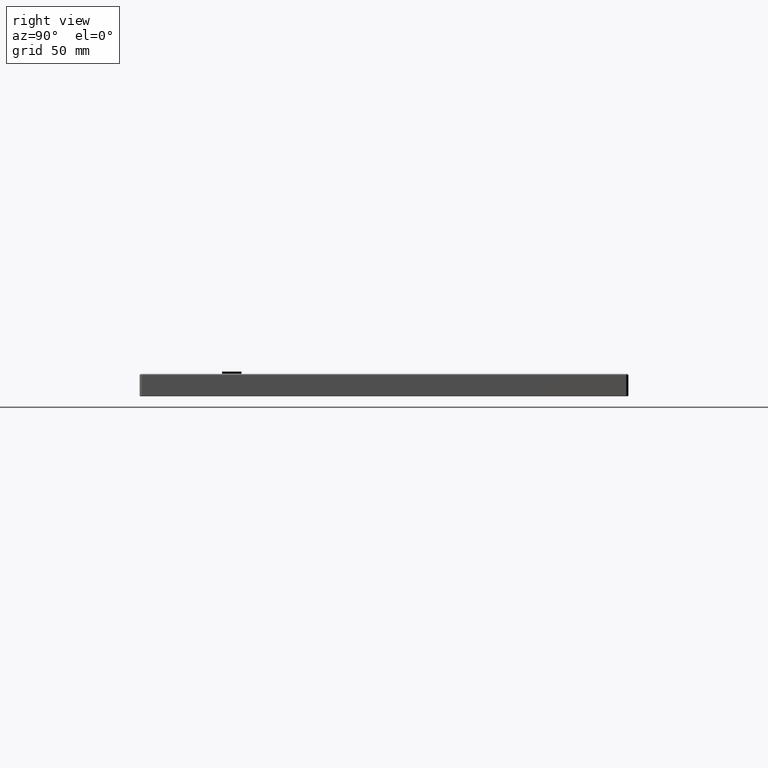
[diagram: clean part render]
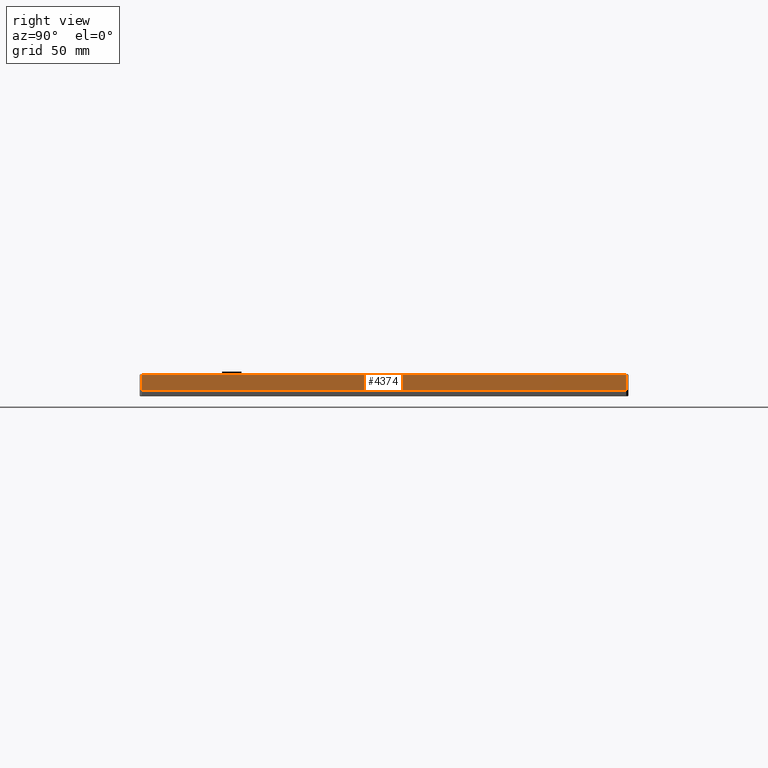
[diagram: same view with one face highlighted and labeled with its STEP entity id]
A machine part, right view. The second image highlights one B-rep face of the part: STEP entity #4374.
In plain terms, the highlighted planar face has unit normal (-1, 0, 0).
Its self-contained STEP definition (entity closure, byte-faithful):
#29 = DIRECTION ( 'NONE',  ( -0.0000000000000000000, -3.661440193980266100E-015, 1.000000000000000000 ) ) ;
#79 = ORIENTED_EDGE ( 'NONE', *, *, #21093, .F. ) ;
#81 = ORIENTED_EDGE ( 'NONE', *, *, #11747, .F. ) ;
#151 = VERTEX_POINT ( 'NONE', #17935 ) ;
#155 = VERTEX_POINT ( 'NONE', #9438 ) ;
#179 = CARTESIAN_POINT ( 'NONE',  ( 105.9453703703703800, 20.71358377989179200, 2.023778694547430300 ) ) ;
#201 = CARTESIAN_POINT ( 'NONE',  ( 105.9453703703703800, 29.61006562332323700, 1.758139534883750700 ) ) ;
#256 = CARTESIAN_POINT ( 'NONE',  ( 105.9453703703703800, 28.73353777042975200, 0.7348837209302308000 ) ) ;
#273 = EDGE_CURVE ( 'NONE', #2703, #309, #8829, .T. ) ;
#283 = VECTOR ( 'NONE', #11332, 1000.000000000000000 ) ;
#306 = EDGE_CURVE ( 'NONE', #2479, #14420, #1930, .T. ) ;
#307 = CARTESIAN_POINT ( 'NONE',  ( 105.9453703703703800, 33.82758860872076000, 0.7162790697674802400 ) ) ;
#309 = VERTEX_POINT ( 'NONE', #1513 ) ;
#342 = CARTESIAN_POINT ( 'NONE',  ( 105.9453703703703800, 34.87761565036490200, 1.227906976744215900 ) ) ;
#369 = CARTESIAN_POINT ( 'NONE',  ( 105.9453703703703800, 34.86030899812042300, 0.8744186046511781600 ) ) ;
#382 = DIRECTION ( 'NONE',  ( -0.0000000000000000000, -4.032059971189313800E-015, 1.000000000000000000 ) ) ;
#387 = CARTESIAN_POINT ( 'NONE',  ( 105.9453703703703800, 20.16980158663494300, 2.567582646306274500 ) ) ;
#401 = B_SPLINE_CURVE_WITH_KNOTS ( 'NONE', 3,
 ( #16939, #11921, #1808, #3282 ),
 .UNSPECIFIED., .F., .F.,
 ( 4, 4 ),
 ( 4.000000000000000000, 5.000000000000000000 ),
 .UNSPECIFIED. ) ;
#440 = EDGE_CURVE ( 'NONE', #13644, #15338, #12780, .T. ) ;
#463 = DIRECTION ( 'NONE',  ( -0.0000000000000000000, 1.000000000000000000, 4.252855617981530800E-015 ) ) ;
#485 = ORIENTED_EDGE ( 'NONE', *, *, #12468, .F. ) ;
#558 = CARTESIAN_POINT ( 'NONE',  ( 105.9453703703703800, 20.52867717665846200, -0.4151576205925974800 ) ) ;
#570 = CARTESIAN_POINT ( 'NONE',  ( 105.9453703703703800, 23.24035226475107400, 0.8837209302325500500 ) ) ;
#571 = EDGE_CURVE ( 'NONE', #642, #19392, #8731, .T. ) ;
#596 = ORIENTED_EDGE ( 'NONE', *, *, #10022, .F. ) ;
#635 = CARTESIAN_POINT ( 'NONE',  ( 105.9453703703703800, 20.71358377989179900, 0.1286517673575807200 ) ) ;
#642 = VERTEX_POINT ( 'NONE', #13500 ) ;
#656 = CARTESIAN_POINT ( 'NONE',  ( 105.9453703703703800, 32.47950856545411100, 2.027906976744174600 ) ) ;
#666 = EDGE_CURVE ( 'NONE', #17910, #17800, #10428, .T. ) ;
#670 = VERTEX_POINT ( 'NONE', #17482 ) ;
#694 = VERTEX_POINT ( 'NONE', #3730 ) ;
#722 = B_SPLINE_CURVE_WITH_KNOTS ( 'NONE', 3,
 ( #9035, #10824, #10881, #8895 ),
 .UNSPECIFIED., .F., .F.,
 ( 4, 4 ),
 ( 7.000000000000000000, 8.000000000000000000 ),
 .UNSPECIFIED. ) ;
#766 = LINE ( 'NONE', #11990, #8166 ) ;
#782 = VERTEX_POINT ( 'NONE', #20751 ) ;
#799 = EDGE_CURVE ( 'NONE', #155, #1827, #1627, .T. ) ;
#801 = ORIENTED_EDGE ( 'NONE', *, *, #13319, .F. ) ;
#810 = CARTESIAN_POINT ( 'NONE',  ( 105.9453703703703800, 31.25884874933725800, 2.037209302325610600 ) ) ;
#860 = CARTESIAN_POINT ( 'NONE',  ( 105.9453703703703800, 29.41044420634109400, 1.386046511627889500 ) ) ;
#911 = CARTESIAN_POINT ( 'NONE',  ( 105.9453703703703800, 28.33434901975373400, 0.7348837209302291300 ) ) ;
#940 = CARTESIAN_POINT ( 'NONE',  ( 105.9453703703703800, 25.83791851677913300, 0.3782044348296341700 ) ) ;
#956 = ORIENTED_EDGE ( 'NONE', *, *, #20449, .F. ) ;
#968 = LINE ( 'NONE', #5725, #3864 ) ;
#983 = ORIENTED_EDGE ( 'NONE', *, *, #11333, .F. ) ;
#1066 = CARTESIAN_POINT ( 'NONE',  ( 105.9453703703703800, 27.66614999325284100, 1.023255813953492200 ) ) ;
#1111 = CARTESIAN_POINT ( 'NONE',  ( 105.9453703703703800, 21.19232630477257800, 1.041860465116265300 ) ) ;
#1174 = EDGE_LOOP ( 'NONE', ( #79, #10978, #1647, #20862 ) ) ;
#1178 = CARTESIAN_POINT ( 'NONE',  ( 105.9453703703703800, 33.63083360601659400, 0.4061114115738416700 ) ) ;
#1236 = EDGE_CURVE ( 'NONE', #8781, #4222, #17762, .T. ) ;
#1267 = CARTESIAN_POINT ( 'NONE',  ( 105.9453703703703800, 23.24035226475106700, 2.037209302325583100 ) ) ;
#1273 = EDGE_CURVE ( 'NONE', #7478, #14040, #14354, .T. ) ;
#1278 = CARTESIAN_POINT ( 'NONE',  ( 105.9453703703703800, 17.91569582966601400, -0.4151576205926078600 ) ) ;
#1331 = CARTESIAN_POINT ( 'NONE',  ( 105.9453703703703800, 23.24035226475107400, 0.8837209302325500500 ) ) ;
#1351 = EDGE_CURVE ( 'NONE', #2121, #18334, #3468, .T. ) ;
#1373 = VECTOR ( 'NONE', #20761, 1000.000000000000000 ) ;
#1496 = CARTESIAN_POINT ( 'NONE',  ( 105.9453703703703800, 33.07258590455624200, 1.776744186046530900 ) ) ;
#1497 = CARTESIAN_POINT ( 'NONE',  ( 105.9453703703703800, 22.52877844106249200, 1.479069767441818100 ) ) ;
#1513 = CARTESIAN_POINT ( 'NONE',  ( 105.9453703703703800, 30.64273192943461800, 0.03720930232560537600 ) ) ;
#1555 = EDGE_CURVE ( 'NONE', #4614, #17057, #14315, .T. ) ;
#1565 = EDGE_LOOP ( 'NONE', ( #19312, #12413, #2627, #20198 ) ) ;
#1608 = CARTESIAN_POINT ( 'NONE',  ( 105.9453703703703800, 30.22618244322589100, 0.03720930232560364100 ) ) ;
#1627 = LINE ( 'NONE', #1331, #2173 ) ;
#1647 = ORIENTED_EDGE ( 'NONE', *, *, #18210, .F. ) ;
#1652 = ORIENTED_EDGE ( 'NONE', *, *, #13598, .F. ) ;
#1653 = ORIENTED_EDGE ( 'NONE', *, *, #20566, .F. ) ;
#1663 = LINE ( 'NONE', #14603, #19135 ) ;
#1676 = CARTESIAN_POINT ( 'NONE',  ( 105.9453703703703800, 31.90974112359356600, 2.037209302325610600 ) ) ;
#1710 = VERTEX_POINT ( 'NONE', #12287 ) ;
#1736 = FACE_BOUND ( 'NONE', #10737, .T. ) ;
#1762 = VERTEX_POINT ( 'NONE', #7456 ) ;
#1784 = CARTESIAN_POINT ( 'NONE',  ( 105.9453703703703800, 34.87761565036490200, 1.227906976744215900 ) ) ;
#1789 = DIRECTION ( 'NONE',  ( -0.0000000000000000000, -0.0000000000000000000, -1.000000000000000000 ) ) ;
#1808 = CARTESIAN_POINT ( 'NONE',  ( 105.9453703703703800, 34.32791310845024000, 0.9674418604651273700 ) ) ;
#1827 = VERTEX_POINT ( 'NONE', #17447 ) ;
#1863 = CARTESIAN_POINT ( 'NONE',  ( 105.9453703703703800, 22.96263457951569400, 1.479069767441819600 ) ) ;
#1864 = CARTESIAN_POINT ( 'NONE',  ( 105.9453703703703800, 23.65690175095979700, 2.037209302325583100 ) ) ;
#1866 = CARTESIAN_POINT ( 'NONE',  ( 105.9453703703703800, 31.50184496350710000, 2.037209302325610600 ) ) ;
#1930 = B_SPLINE_CURVE_WITH_KNOTS ( 'NONE', 3,
 ( #8233, #9943, #11628, #14971 ),
 .UNSPECIFIED., .F., .F.,
 ( 4, 4 ),
 ( 4.000000000000000000, 5.000000000000000000 ),
 .UNSPECIFIED. ) ;
#1938 = DIRECTION ( 'NONE',  ( -0.0000000000000000000, -5.525415516074179800E-015, 1.000000000000000000 ) ) ;
#2001 = LINE ( 'NONE', #1863, #19452 ) ;
#2005 = ORIENTED_EDGE ( 'NONE', *, *, #3520, .F. ) ;
#2011 = CARTESIAN_POINT ( 'NONE',  ( 105.9453703703703800, 24.50736145890996900, 0.7813953488371925300 ) ) ;
#2101 = EDGE_CURVE ( 'NONE', #21812, #2479, #6283, .T. ) ;
#2102 = CARTESIAN_POINT ( 'NONE',  ( 105.9453703703703800, 32.78324031234431100, 0.2944835045970914400 ) ) ;
#2121 = VERTEX_POINT ( 'NONE', #6692 ) ;
#2127 = B_SPLINE_CURVE_WITH_KNOTS ( 'NONE', 3,
 ( #3565, #4953, #13632, #20460 ),
 .UNSPECIFIED., .F., .F.,
 ( 4, 4 ),
 ( 5.000000000000000000, 6.000000000000000000 ),
 .UNSPECIFIED. ) ;
#2129 = CARTESIAN_POINT ( 'NONE',  ( 105.9453703703703800, 23.79859996621125300, 0.2697674418604585300 ) ) ;
#2160 = CARTESIAN_POINT ( 'NONE',  ( 105.9453703703703800, 32.15273733776341200, 1.032558139534919500 ) ) ;
#2173 = VECTOR ( 'NONE', #6389, 1000.000000000000000 ) ;
#2186 = DIRECTION ( 'NONE',  ( -0.0000000000000000000, -1.000000000000000000, -4.299026547488496200E-015 ) ) ;
#2193 = EDGE_LOOP ( 'NONE', ( #6939, #11206, #12129, #596, #7827, #20152, #10620, #14867, #8506, #19955, #14185, #7285, #485, #16804 ) ) ;
#2295 = DIRECTION ( 'NONE',  ( -0.0000000000000000000, 1.000000000000000000, 3.661440286475799900E-015 ) ) ;
#2349 = CARTESIAN_POINT ( 'NONE',  ( 105.9453703703703800, 25.80903804084622200, 1.023255813953485100 ) ) ;
#2381 = B_SPLINE_CURVE_WITH_KNOTS ( 'NONE', 3,
 ( #12286, #656, #4065, #2160 ),
 .UNSPECIFIED., .F., .F.,
 ( 4, 4 ),
 ( 8.000000000000000000, 9.000000000000000000 ),
 .UNSPECIFIED. ) ;
#2470 = B_SPLINE_CURVE_WITH_KNOTS ( 'NONE', 3,
 ( #21100, #6165, #9440, #2766 ),
 .UNSPECIFIED., .F., .F.,
 ( 4, 4 ),
 ( 8.000000000000000000, 9.000000000000000000 ),
 .UNSPECIFIED. ) ;
#2473 = CARTESIAN_POINT ( 'NONE',  ( 105.9453703703703800, 22.97134198892619800, 0.4465116279069748000 ) ) ;
#2479 = VERTEX_POINT ( 'NONE', #5976 ) ;
#2497 = CARTESIAN_POINT ( 'NONE',  ( 105.9453703703703800, 27.66614999325284100, 1.023255813953492200 ) ) ;
#2627 = ORIENTED_EDGE ( 'NONE', *, *, #12866, .F. ) ;
#2669 = CARTESIAN_POINT ( 'NONE',  ( 105.9453703703703800, 32.15273733776341200, 1.032558139534919500 ) ) ;
#2703 = VERTEX_POINT ( 'NONE', #1608 ) ;
#2728 = CARTESIAN_POINT ( 'NONE',  ( 105.9453703703703800, 35.21606886832051900, 0.5674418604651472200 ) ) ;
#2731 = CARTESIAN_POINT ( 'NONE',  ( 105.9453703703703800, 22.14695042591924300, -1.561251128379126400E-014 ) ) ;
#2747 = CARTESIAN_POINT ( 'NONE',  ( 105.9453703703703800, 21.19232630477257800, 1.041860465116265300 ) ) ;
#2766 = CARTESIAN_POINT ( 'NONE',  ( 105.9453703703703800, 35.19005480666559300, 1.441860465116325400 ) ) ;
#2777 = FACE_BOUND ( 'NONE', #5159, .T. ) ;
#2805 = EDGE_CURVE ( 'NONE', #8243, #6905, #3626, .T. ) ;
#2853 = CARTESIAN_POINT ( 'NONE',  ( 105.9453703703703800, 33.04657184290132200, 2.065116279069821600 ) ) ;
#2909 = VERTEX_POINT ( 'NONE', #19217 ) ;
#2991 = EDGE_CURVE ( 'NONE', #21345, #11436, #2470, .T. ) ;
#3005 = VECTOR ( 'NONE', #21509, 1000.000000000000000 ) ;
#3008 = VERTEX_POINT ( 'NONE', #860 ) ;
#3017 = CARTESIAN_POINT ( 'NONE',  ( 105.9453703703703800, 35.39248855463744500, 3.122502256758252800E-014 ) ) ;
#3032 = ORIENTED_EDGE ( 'NONE', *, *, #273, .F. ) ;
#3047 = CARTESIAN_POINT ( 'NONE',  ( 105.9453703703703800, 28.33434901975373400, 0.03720930232559670200 ) ) ;
#3064 = CARTESIAN_POINT ( 'NONE',  ( 105.9453703703703800, 34.07923814901286600, 0.7255813953488659000 ) ) ;
#3111 = DIRECTION ( 'NONE',  ( -0.0000000000000000000, 3.884341374355074700E-015, -1.000000000000000000 ) ) ;
#3136 = EDGE_CURVE ( 'NONE', #16464, #7478, #9946, .T. ) ;
#3169 = CARTESIAN_POINT ( 'NONE',  ( 105.9453703703703800, 22.96263457951569400, 1.479069767441819600 ) ) ;
#3282 = CARTESIAN_POINT ( 'NONE',  ( 105.9453703703703800, 34.86030899812042300, 0.8744186046511781600 ) ) ;
#3284 = VERTEX_POINT ( 'NONE', #13482 ) ;
#3457 = CARTESIAN_POINT ( 'NONE',  ( 105.9453703703703800, 29.19632846810421600, 0.7223904813412712600 ) ) ;
#3467 = EDGE_CURVE ( 'NONE', #13361, #4594, #10456, .T. ) ;
#3468 = LINE ( 'NONE', #8332, #20986 ) ;
#3499 = ORIENTED_EDGE ( 'NONE', *, *, #13559, .F. ) ;
#3513 = EDGE_CURVE ( 'NONE', #11436, #10944, #14681, .T. ) ;
#3520 = EDGE_CURVE ( 'NONE', #17800, #8811, #18637, .T. ) ;
#3521 = CARTESIAN_POINT ( 'NONE',  ( 105.9453703703703800, 31.25884874933725000, 2.037209302325610600 ) ) ;
#3542 = DIRECTION ( 'NONE',  ( -0.0000000000000000000, 1.000000000000000000, 3.998384077638023600E-015 ) ) ;
#3565 = CARTESIAN_POINT ( 'NONE',  ( 105.9453703703703800, 34.82558752705494200, 2.065116279069828300 ) ) ;
#3626 = LINE ( 'NONE', #179, #9202 ) ;
#3632 = CARTESIAN_POINT ( 'NONE',  ( 105.9453703703703800, 27.92650694295545200, 0.03720930232559670200 ) ) ;
#3654 = CARTESIAN_POINT ( 'NONE',  ( 105.9453703703703800, 34.81688011764450200, 0.2604651162791127300 ) ) ;
#3730 = CARTESIAN_POINT ( 'NONE',  ( 105.9453703703703800, 137.5420370370370900, 4.500000000000052400 ) ) ;
#3741 = VERTEX_POINT ( 'NONE', #20975 ) ;
#3790 = VERTEX_POINT ( 'NONE', #2731 ) ;
#3800 = EDGE_CURVE ( 'NONE', #17866, #13065, #5732, .T. ) ;
#3858 = CARTESIAN_POINT ( 'NONE',  ( 105.9453703703703800, 24.50736145890996600, 2.037209302325586200 ) ) ;
#3862 = CARTESIAN_POINT ( 'NONE',  ( 105.9453703703703800, 32.58951397378290000, 0.5425905895078617600 ) ) ;
#3864 = VECTOR ( 'NONE', #2295, 1000.000000000000000 ) ;
#3878 = DIRECTION ( 'NONE',  ( -0.0000000000000000000, -1.000000000000000000, -4.208494006535718900E-015 ) ) ;
#3891 = CARTESIAN_POINT ( 'NONE',  ( 105.9453703703703800, 23.65690175095980400, 0.7813953488371889700 ) ) ;
#3974 = B_SPLINE_CURVE_WITH_KNOTS ( 'NONE', 3,
 ( #2728, #7759, #7610, #7839 ),
 .UNSPECIFIED., .F., .F.,
 ( 4, 4 ),
 ( 2.000000000000000000, 3.000000000000000000 ),
 .UNSPECIFIED. ) ;
#3990 = DIRECTION ( 'NONE',  ( -0.0000000000000000000, -1.000000000000000000, -0.0000000000000000000 ) ) ;
#4065 = CARTESIAN_POINT ( 'NONE',  ( 105.9453703703703800, 32.18161781369643400, 1.683720930232576400 ) ) ;
#4070 = VERTEX_POINT ( 'NONE', #21690 ) ;
#4102 = FACE_OUTER_BOUND ( 'NONE', #1565, .T. ) ;
#4127 = CARTESIAN_POINT ( 'NONE',  ( 105.9453703703703800, 28.73353777042974500, 2.037209302325600400 ) ) ;
#4128 = ORIENTED_EDGE ( 'NONE', *, *, #8336, .F. ) ;
#4222 = VERTEX_POINT ( 'NONE', #12265 ) ;
#4354 = VERTEX_POINT ( 'NONE', #9525 ) ;
#4374 = ADVANCED_FACE ( 'NONE', ( #13097, #16788, #1736, #17602, #12039, #2777, #8612, #19203, #15485, #4102 ), #6453, .F. ) ;
#4387 = EDGE_CURVE ( 'NONE', #4443, #782, #20278, .T. ) ;
#4443 = VERTEX_POINT ( 'NONE', #9963 ) ;
#4508 = EDGE_CURVE ( 'NONE', #5910, #17866, #10972, .T. ) ;
#4533 = LINE ( 'NONE', #8168, #15699 ) ;
#4561 = CARTESIAN_POINT ( 'NONE',  ( 105.9453703703703800, 17.73084358834331600, -0.2302781936441324100 ) ) ;
#4573 = DIRECTION ( 'NONE',  ( -0.0000000000000000000, 1.000000000000000000, 4.252855617981530800E-015 ) ) ;
#4581 = VECTOR ( 'NONE', #18560, 1000.000000000000000 ) ;
#4594 = VERTEX_POINT ( 'NONE', #18802 ) ;
#4600 = AXIS2_PLACEMENT_3D ( 'NONE', #6680, #11799, #18602 ) ;
#4602 = LINE ( 'NONE', #13242, #20536 ) ;
#4614 = VERTEX_POINT ( 'NONE', #8452 ) ;
#4674 = VERTEX_POINT ( 'NONE', #15323 ) ;
#4704 = VERTEX_POINT ( 'NONE', #10861 ) ;
#4797 = ORIENTED_EDGE ( 'NONE', *, *, #440, .F. ) ;
#4841 = DIRECTION ( 'NONE',  ( -0.0000000000000000000, 1.000000000000000000, 2.815575585569821000E-015 ) ) ;
#4863 = CARTESIAN_POINT ( 'NONE',  ( 105.9453703703703800, 24.50736145890996900, 0.7813953488371933000 ) ) ;
#4953 = CARTESIAN_POINT ( 'NONE',  ( 105.9453703703703800, 34.37431656978078800, 2.058869659275291800 ) ) ;
#4984 = CARTESIAN_POINT ( 'NONE',  ( 105.9453703703703800, 30.22618244322588400, 1.758139534883752500 ) ) ;
#4997 = CARTESIAN_POINT ( 'NONE',  ( 105.9453703703703800, 22.15560375204139700, 0.2697674418604533700 ) ) ;
#5029 = B_SPLINE_CURVE_WITH_KNOTS ( 'NONE', 3,
 ( #10508, #17595, #15897, #342 ),
 .UNSPECIFIED., .F., .F.,
 ( 4, 4 ),
 ( 11.00000000000000000, 12.00000000000000000 ),
 .UNSPECIFIED. ) ;
#5048 = LINE ( 'NONE', #6285, #7981 ) ;
#5100 = DIRECTION ( 'NONE',  ( 0.0000000000000000000, 0.0000000000000000000, 1.000000000000000000 ) ) ;
#5144 = B_SPLINE_CURVE_WITH_KNOTS ( 'NONE', 3,
 ( #21496, #8222, #20072, #1497 ),
 .UNSPECIFIED., .F., .F.,
 ( 4, 4 ),
 ( 1.000000000000000000, 2.000000000000000000 ),
 .UNSPECIFIED. ) ;
#5159 = EDGE_LOOP ( 'NONE', ( #17423, #5248, #801, #8752, #17159, #5439, #4797 ) ) ;
#5181 = CARTESIAN_POINT ( 'NONE',  ( 105.9453703703703800, 34.54786984181973300, 1.516279069767506600 ) ) ;
#5193 = CARTESIAN_POINT ( 'NONE',  ( 105.9453703703703800, 34.83424085317726300, 1.776744186046536100 ) ) ;
#5202 = B_SPLINE_CURVE_WITH_KNOTS ( 'NONE', 3,
 ( #12612, #940, #9368, #17717 ),
 .UNSPECIFIED., .F., .F.,
 ( 4, 4 ),
 ( 1.000000000000000000, 2.000000000000000000 ),
 .UNSPECIFIED. ) ;
#5210 = LINE ( 'NONE', #19914, #21655 ) ;
#5234 = LINE ( 'NONE', #21014, #8694 ) ;
#5248 = ORIENTED_EDGE ( 'NONE', *, *, #15836, .F. ) ;
#5259 = CARTESIAN_POINT ( 'NONE',  ( 105.9453703703703800, 35.21606886832051900, 0.7286371011357724000 ) ) ;
#5332 = LINE ( 'NONE', #15862, #12749 ) ;
#5364 = EDGE_CURVE ( 'NONE', #10944, #17953, #9418, .T. ) ;
#5400 = ORIENTED_EDGE ( 'NONE', *, *, #15315, .F. ) ;
#5409 = VECTOR ( 'NONE', #1789, 1000.000000000000000 ) ;
#5439 = ORIENTED_EDGE ( 'NONE', *, *, #15413, .F. ) ;
#5528 = EDGE_CURVE ( 'NONE', #694, #10365, #5048, .T. ) ;
#5554 = CARTESIAN_POINT ( 'NONE',  ( 105.9453703703703800, 35.19005480666559300, 1.441860465116325400 ) ) ;
#5607 = CARTESIAN_POINT ( 'NONE',  ( 105.9453703703703800, 34.63748585047309800, 1.776744186046536100 ) ) ;
#5652 = VERTEX_POINT ( 'NONE', #11772 ) ;
#5663 = ORIENTED_EDGE ( 'NONE', *, *, #666, .F. ) ;
#5725 = CARTESIAN_POINT ( 'NONE',  ( 105.9453703703703800, 20.16980158663495000, -0.4151576205925992000 ) ) ;
#5732 = LINE ( 'NONE', #10884, #13159 ) ;
#5753 = B_SPLINE_CURVE_WITH_KNOTS ( 'NONE', 3,
 ( #7968, #3017, #19812, #13083 ),
 .UNSPECIFIED., .F., .F.,
 ( 4, 4 ),
 ( 12.00000000000000000, 13.00000000000000000 ),
 .UNSPECIFIED. ) ;
#5839 = CARTESIAN_POINT ( 'NONE',  ( 105.9453703703703800, 17.73084358834330800, 2.273930469385312400 ) ) ;
#5871 = CARTESIAN_POINT ( 'NONE',  ( 105.9453703703703800, 33.40519812737940000, 1.652623039480795900 ) ) ;
#5910 = VERTEX_POINT ( 'NONE', #6840 ) ;
#5929 = CARTESIAN_POINT ( 'NONE',  ( 105.9453703703703800, 22.58080656437244500, -1.387778780781445700E-014 ) ) ;
#5951 = CARTESIAN_POINT ( 'NONE',  ( 105.9453703703703800, 32.57794015009446300, 1.013953488372097800 ) ) ;
#5976 = CARTESIAN_POINT ( 'NONE',  ( 105.9453703703703800, 22.58080656437244500, 0.5767441860465155600 ) ) ;
#5981 = CARTESIAN_POINT ( 'NONE',  ( 105.9453703703703800, 22.12088228097602300, 2.065116279069783500 ) ) ;
#6023 = CARTESIAN_POINT ( 'NONE',  ( 105.9453703703703800, 27.63710726745521700, 0.3782044348296410600 ) ) ;
#6151 = ORIENTED_EDGE ( 'NONE', *, *, #15013, .F. ) ;
#6165 = CARTESIAN_POINT ( 'NONE',  ( 105.9453703703703800, 35.00779412521603700, 1.770497566252056800 ) ) ;
#6192 = VECTOR ( 'NONE', #1938, 1000.000000000000000 ) ;
#6247 = VECTOR ( 'NONE', #3878, 1000.000000000000000 ) ;
#6267 = LINE ( 'NONE', #15386, #10810 ) ;
#6283 = LINE ( 'NONE', #15137, #14775 ) ;
#6285 = CARTESIAN_POINT ( 'NONE',  ( 105.9453703703703800, 137.5420370370371200, 5.000000000000000900 ) ) ;
#6343 = CARTESIAN_POINT ( 'NONE',  ( 105.9453703703703800, 33.06393257843409800, 2.255140518769849200E-014 ) ) ;
#6389 = DIRECTION ( 'NONE',  ( -0.0000000000000000000, 6.015573344113071300E-015, -1.000000000000000000 ) ) ;
#6408 = CARTESIAN_POINT ( 'NONE',  ( 105.9453703703703800, 21.60887579098130800, 1.032558139534883100 ) ) ;
#6413 = CARTESIAN_POINT ( 'NONE',  ( 105.9453703703703800, 22.12088228097602300, 1.786046511627876800 ) ) ;
#6453 = PLANE ( 'NONE',  #4600 ) ;
#6477 = CARTESIAN_POINT ( 'NONE',  ( 105.9453703703703800, 33.06393257843409800, 2.255140518769849200E-014 ) ) ;
#6568 = CARTESIAN_POINT ( 'NONE',  ( 105.9453703703703800, 34.12266702948873800, 1.516279069767504800 ) ) ;
#6636 = VECTOR ( 'NONE', #12592, 1000.000000000000000 ) ;
#6680 = CARTESIAN_POINT ( 'NONE',  ( 105.9453703703703800, -101.4579629629629400, 5.000000000000000900 ) ) ;
#6692 = CARTESIAN_POINT ( 'NONE',  ( 105.9453703703703800, 27.92650694295545200, 0.03720930232559670200 ) ) ;
#6763 = EDGE_CURVE ( 'NONE', #7666, #21345, #19290, .T. ) ;
#6787 = EDGE_CURVE ( 'NONE', #9541, #4614, #13554, .T. ) ;
#6791 = CARTESIAN_POINT ( 'NONE',  ( 105.9453703703703800, 34.53618785155471500, 1.361195240670659600 ) ) ;
#6796 = LINE ( 'NONE', #2011, #15825 ) ;
#6809 = CARTESIAN_POINT ( 'NONE',  ( 105.9453703703703800, 34.27588498514045100, 0.1055164954029391000 ) ) ;
#6831 = LINE ( 'NONE', #1267, #11088 ) ;
#6840 = CARTESIAN_POINT ( 'NONE',  ( 105.9453703703703800, 34.81688011764450200, 0.2604651162791127300 ) ) ;
#6849 = CARTESIAN_POINT ( 'NONE',  ( 105.9453703703703800, 28.73353777042975200, 0.7348837209302308000 ) ) ;
#6889 = B_SPLINE_CURVE_WITH_KNOTS ( 'NONE', 3,
 ( #18189, #4561, #1278, #14873 ),
 .UNSPECIFIED., .F., .F.,
 ( 4, 4 ),
 ( 7.000000000000000000, 8.000000000000000000 ),
 .UNSPECIFIED. ) ;
#6905 = VERTEX_POINT ( 'NONE', #7974 ) ;
#6939 = ORIENTED_EDGE ( 'NONE', *, *, #10590, .F. ) ;
#7014 = CARTESIAN_POINT ( 'NONE',  ( 105.9453703703703800, 26.14749125880182800, 2.040265008112492700 ) ) ;
#7043 = CARTESIAN_POINT ( 'NONE',  ( 105.9453703703703800, 34.82558752705494200, 2.065116279069828300 ) ) ;
#7049 = CARTESIAN_POINT ( 'NONE',  ( 105.9453703703703800, 34.07923814901286600, 0.7255813953488659000 ) ) ;
#7123 = DIRECTION ( 'NONE',  ( -0.0000000000000000000, -1.000000000000000000, -0.0000000000000000000 ) ) ;
#7150 = CARTESIAN_POINT ( 'NONE',  ( 105.9453703703703800, 33.07258590455624200, 1.776744186046530900 ) ) ;
#7210 = ORIENTED_EDGE ( 'NONE', *, *, #16558, .F. ) ;
#7254 = VECTOR ( 'NONE', #8649, 1000.000000000000000 ) ;
#7285 = ORIENTED_EDGE ( 'NONE', *, *, #3136, .F. ) ;
#7322 = B_SPLINE_CURVE_WITH_KNOTS ( 'NONE', 3,
 ( #11053, #5929, #10975, #2473 ),
 .UNSPECIFIED., .F., .F.,
 ( 4, 4 ),
 ( 10.00000000000000000, 11.00000000000000000 ),
 .UNSPECIFIED. ) ;
#7390 = CARTESIAN_POINT ( 'NONE',  ( 105.9453703703703800, 34.83424085317726300, 1.776744186046536100 ) ) ;
#7456 = CARTESIAN_POINT ( 'NONE',  ( 105.9453703703703800, 26.73759401704956000, 0.0000000000000000000 ) ) ;
#7468 = VERTEX_POINT ( 'NONE', #11482 ) ;
#7478 = VERTEX_POINT ( 'NONE', #7866 ) ;
#7497 = ORIENTED_EDGE ( 'NONE', *, *, #7933, .F. ) ;
#7527 = VECTOR ( 'NONE', #20108, 1000.000000000000000 ) ;
#7550 = CARTESIAN_POINT ( 'NONE',  ( 105.9453703703703800, 18.27467470731991000, 2.567582646306271400 ) ) ;
#7609 = CARTESIAN_POINT ( 'NONE',  ( 105.9453703703703800, 33.82758860872076000, 0.3348837209302367700 ) ) ;
#7610 = CARTESIAN_POINT ( 'NONE',  ( 105.9453703703703800, 35.07723706734705600, 0.2604651162791144500 ) ) ;
#7619 = EDGE_CURVE ( 'NONE', #21031, #2909, #766, .T. ) ;
#7666 = VERTEX_POINT ( 'NONE', #5181 ) ;
#7729 = ORIENTED_EDGE ( 'NONE', *, *, #20601, .F. ) ;
#7746 = EDGE_CURVE ( 'NONE', #11649, #9646, #722, .T. ) ;
#7748 = VERTEX_POINT ( 'NONE', #8972 ) ;
#7759 = CARTESIAN_POINT ( 'NONE',  ( 105.9453703703703800, 35.21022787318806000, 0.3627906976744494400 ) ) ;
#7824 = CARTESIAN_POINT ( 'NONE',  ( 105.9453703703703800, 33.82758860872076000, 0.7162790697674802400 ) ) ;
#7827 = ORIENTED_EDGE ( 'NONE', *, *, #571, .F. ) ;
#7839 = CARTESIAN_POINT ( 'NONE',  ( 105.9453703703703800, 34.81688011764450200, 0.2604651162791127300 ) ) ;
#7866 = CARTESIAN_POINT ( 'NONE',  ( 105.9453703703703800, 22.97134198892619800, 1.190697674418582700 ) ) ;
#7880 = CARTESIAN_POINT ( 'NONE',  ( 105.9453703703703800, 33.50352154544327700, 2.058869659275288600 ) ) ;
#7917 = CARTESIAN_POINT ( 'NONE',  ( 105.9453703703703800, 24.51888119931022900, 0.4279069767441565100 ) ) ;
#7928 = CARTESIAN_POINT ( 'NONE',  ( 105.9453703703703800, 21.60887579098130800, 1.032558139534883100 ) ) ;
#7933 = EDGE_CURVE ( 'NONE', #11117, #5910, #3974, .T. ) ;
#7940 = ORIENTED_EDGE ( 'NONE', *, *, #799, .F. ) ;
#7968 = CARTESIAN_POINT ( 'NONE',  ( 105.9453703703703800, 34.87761565036490200, 2.949029909160572100E-014 ) ) ;
#7974 = CARTESIAN_POINT ( 'NONE',  ( 105.9453703703703800, 20.71358377989179200, 2.023778694547428500 ) ) ;
#7981 = VECTOR ( 'NONE', #17991, 1000.000000000000000 ) ;
#7984 = ORIENTED_EDGE ( 'NONE', *, *, #4387, .F. ) ;
#8010 = ORIENTED_EDGE ( 'NONE', *, *, #14531, .F. ) ;
#8094 = CARTESIAN_POINT ( 'NONE',  ( 105.9453703703703800, 22.97134198892619800, 1.190697674418582700 ) ) ;
#8166 = VECTOR ( 'NONE', #5100, 1000.000000000000000 ) ;
#8168 = CARTESIAN_POINT ( 'NONE',  ( 105.9453703703703800, 30.64273192943461100, 1.758139534883754100 ) ) ;
#8178 = VERTEX_POINT ( 'NONE', #10498 ) ;
#8222 = CARTESIAN_POINT ( 'NONE',  ( 105.9453703703703800, 22.32915702408033100, 1.786046511627876800 ) ) ;
#8233 = CARTESIAN_POINT ( 'NONE',  ( 105.9453703703703800, 22.58080656437244500, 0.5767441860465155600 ) ) ;
#8243 = VERTEX_POINT ( 'NONE', #635 ) ;
#8284 = VECTOR ( 'NONE', #2186, 1000.000000000000000 ) ;
#8287 = ORIENTED_EDGE ( 'NONE', *, *, #19358, .F. ) ;
#8332 = CARTESIAN_POINT ( 'NONE',  ( 105.9453703703703800, 28.33434901975373400, 0.03720930232559670200 ) ) ;
#8336 = EDGE_CURVE ( 'NONE', #10309, #8243, #9087, .T. ) ;
#8376 = EDGE_CURVE ( 'NONE', #7748, #10309, #968, .T. ) ;
#8385 = VERTEX_POINT ( 'NONE', #2349 ) ;
#8452 = CARTESIAN_POINT ( 'NONE',  ( 105.9453703703703800, 24.92391094511874900, 2.037209302325586200 ) ) ;
#8470 = B_SPLINE_CURVE_WITH_KNOTS ( 'NONE', 3,
 ( #14263, #17663, #16260, #4127 ),
 .UNSPECIFIED., .F., .F.,
 ( 4, 4 ),
 ( 5.000000000000000000, 6.000000000000000000 ),
 .UNSPECIFIED. ) ;
#8506 = ORIENTED_EDGE ( 'NONE', *, *, #11752, .F. ) ;
#8566 = VERTEX_POINT ( 'NONE', #21522 ) ;
#8612 = FACE_BOUND ( 'NONE', #1174, .T. ) ;
#8649 = DIRECTION ( 'NONE',  ( -0.0000000000000000000, 1.000000000000000000, 2.815575585569821000E-015 ) ) ;
#8670 = CARTESIAN_POINT ( 'NONE',  ( 105.9453703703703800, 35.58924355734161100, 1.441860465116327200 ) ) ;
#8686 = CARTESIAN_POINT ( 'NONE',  ( 105.9453703703703800, 32.57794015009446300, 1.013953488372097800 ) ) ;
#8694 = VECTOR ( 'NONE', #20879, 1000.000000000000000 ) ;
#8731 = B_SPLINE_CURVE_WITH_KNOTS ( 'NONE', 3,
 ( #7928, #20213, #13390, #6413 ),
 .UNSPECIFIED., .F., .F.,
 ( 4, 4 ),
 ( 2.000000000000000000, 3.000000000000000000 ),
 .UNSPECIFIED. ) ;
#8752 = ORIENTED_EDGE ( 'NONE', *, *, #21678, .F. ) ;
#8781 = VERTEX_POINT ( 'NONE', #307 ) ;
#8811 = VERTEX_POINT ( 'NONE', #12087 ) ;
#8829 = LINE ( 'NONE', #9648, #3005 ) ;
#8846 = CARTESIAN_POINT ( 'NONE',  ( 105.9453703703703800, 34.82558752705494200, 2.065116279069828300 ) ) ;
#8895 = CARTESIAN_POINT ( 'NONE',  ( 105.9453703703703800, 33.06393257843409800, 2.255140518769849200E-014 ) ) ;
#8915 = CARTESIAN_POINT ( 'NONE',  ( 105.9453703703703800, 20.52867717665845500, 2.567582646306275400 ) ) ;
#8972 = CARTESIAN_POINT ( 'NONE',  ( 105.9453703703703800, 18.27467470731991700, -0.4151576205926057500 ) ) ;
#8976 = VECTOR ( 'NONE', #15515, 1000.000000000000000 ) ;
#8983 = CARTESIAN_POINT ( 'NONE',  ( 105.9453703703703800, 17.73084358834330800, 1.915027689339789700 ) ) ;
#8992 = CARTESIAN_POINT ( 'NONE',  ( 105.9453703703703800, 20.71358377989179200, 2.382784762225953000 ) ) ;
#9035 = CARTESIAN_POINT ( 'NONE',  ( 105.9453703703703800, 32.15273733776341200, 1.032558139534919500 ) ) ;
#9087 = B_SPLINE_CURVE_WITH_KNOTS ( 'NONE', 3,
 ( #20884, #558, #10650, #17494 ),
 .UNSPECIFIED., .F., .F.,
 ( 4, 4 ),
 ( 5.000000000000000000, 6.000000000000000000 ),
 .UNSPECIFIED. ) ;
#9091 = ORIENTED_EDGE ( 'NONE', *, *, #15621, .F. ) ;
#9126 = CARTESIAN_POINT ( 'NONE',  ( 105.9453703703703800, 22.02542527719025900, 0.9116279069767262400 ) ) ;
#9197 = EDGE_CURVE ( 'NONE', #670, #151, #12792, .T. ) ;
#9202 = VECTOR ( 'NONE', #29, 1000.000000000000000 ) ;
#9260 = CARTESIAN_POINT ( 'NONE',  ( 105.9453703703703800, 22.14695042591924300, -1.561251128379126400E-014 ) ) ;
#9295 = LINE ( 'NONE', #13173, #283 ) ;
#9355 = ORIENTED_EDGE ( 'NONE', *, *, #15268, .F. ) ;
#9368 = CARTESIAN_POINT ( 'NONE',  ( 105.9453703703703800, 26.14749125880183600, 0.03720930232558976300 ) ) ;
#9370 = CARTESIAN_POINT ( 'NONE',  ( 105.9453703703703800, 28.73353777042975200, 0.7348837209302308000 ) ) ;
#9373 = CARTESIAN_POINT ( 'NONE',  ( 105.9453703703703800, 33.87101748919657500, 1.404651162790730300 ) ) ;
#9377 = CARTESIAN_POINT ( 'NONE',  ( 105.9453703703703800, 27.32769677529728400, 0.03720930232559323300 ) ) ;
#9418 = B_SPLINE_CURVE_WITH_KNOTS ( 'NONE', 3,
 ( #17258, #13786, #18897, #8846 ),
 .UNSPECIFIED., .F., .F.,
 ( 4, 4 ),
 ( 6.000000000000000000, 7.000000000000000000 ),
 .UNSPECIFIED. ) ;
#9438 = CARTESIAN_POINT ( 'NONE',  ( 105.9453703703703800, 23.24035226475106700, 2.037209302325583100 ) ) ;
#9440 = CARTESIAN_POINT ( 'NONE',  ( 105.9453703703703800, 35.12634469309060800, 1.658869659275337800 ) ) ;
#9458 = CARTESIAN_POINT ( 'NONE',  ( 105.9453703703703800, 33.15938958221998000, 0.2697674418604915100 ) ) ;
#9525 = CARTESIAN_POINT ( 'NONE',  ( 105.9453703703703800, 27.66614999325284100, 1.023255813953492200 ) ) ;
#9526 = DIRECTION ( 'NONE',  ( -0.0000000000000000000, -1.000000000000000000, -3.667814416331129300E-015 ) ) ;
#9533 = CARTESIAN_POINT ( 'NONE',  ( 105.9453703703703800, 21.21536578557303100, 1.693023255813922200 ) ) ;
#9539 = ORIENTED_EDGE ( 'NONE', *, *, #19985, .F. ) ;
#9541 = VERTEX_POINT ( 'NONE', #11093 ) ;
#9611 = EDGE_CURVE ( 'NONE', #3284, #18815, #15891, .T. ) ;
#9646 = VERTEX_POINT ( 'NONE', #6477 ) ;
#9648 = CARTESIAN_POINT ( 'NONE',  ( 105.9453703703703800, 30.64273192943461800, 0.03720930232560537600 ) ) ;
#9674 = CARTESIAN_POINT ( 'NONE',  ( 105.9453703703703800, 33.40806454165740300, 0.2572742022715311900 ) ) ;
#9692 = CARTESIAN_POINT ( 'NONE',  ( 105.9453703703703800, 33.04657184290132200, 2.065116279069821600 ) ) ;
#9829 = ORIENTED_EDGE ( 'NONE', *, *, #6787, .F. ) ;
#9832 = ORIENTED_EDGE ( 'NONE', *, *, #3467, .F. ) ;
#9833 = CARTESIAN_POINT ( 'NONE',  ( 105.9453703703703800, 22.58080656437244500, 0.9116279069767280200 ) ) ;
#9885 = EDGE_LOOP ( 'NONE', ( #17027, #7984, #7210, #13306 ) ) ;
#9906 = CARTESIAN_POINT ( 'NONE',  ( 105.9453703703703800, 22.83532251894243000, 1.869767441860445500 ) ) ;
#9943 = CARTESIAN_POINT ( 'NONE',  ( 105.9453703703703800, 22.51709645079758100, 0.3658464034613090300 ) ) ;
#9946 = LINE ( 'NONE', #8094, #19208 ) ;
#9963 = CARTESIAN_POINT ( 'NONE',  ( 105.9453703703703800, 31.90974112359357000, 0.03720930232561058000 ) ) ;
#10022 = EDGE_CURVE ( 'NONE', #19392, #5652, #5144, .T. ) ;
#10125 = EDGE_CURVE ( 'NONE', #8178, #17618, #5210, .T. ) ;
#10284 = VERTEX_POINT ( 'NONE', #6568 ) ;
#10309 = VERTEX_POINT ( 'NONE', #18424 ) ;
#10365 = VERTEX_POINT ( 'NONE', #15543 ) ;
#10372 = CARTESIAN_POINT ( 'NONE',  ( 105.9453703703703800, 34.86030899812042300, 0.8744186046511781600 ) ) ;
#10416 = ORIENTED_EDGE ( 'NONE', *, *, #15402, .F. ) ;
#10428 = B_SPLINE_CURVE_WITH_KNOTS ( 'NONE', 3,
 ( #13880, #2129, #13951, #3891 ),
 .UNSPECIFIED., .F., .F.,
 ( 4, 4 ),
 ( 3.000000000000000000, 4.000000000000000000 ),
 .UNSPECIFIED. ) ;
#10436 = CARTESIAN_POINT ( 'NONE',  ( 105.9453703703703800, 24.92391094511874900, 2.037209302325586200 ) ) ;
#10451 = CARTESIAN_POINT ( 'NONE',  ( 105.9453703703703800, 33.15938958221998000, 0.2697674418604915100 ) ) ;
#10456 = LINE ( 'NONE', #201, #5409 ) ;
#10480 = B_SPLINE_CURVE_WITH_KNOTS ( 'NONE', 3,
 ( #10451, #2102, #3862, #8686 ),
 .UNSPECIFIED., .F., .F.,
 ( 4, 4 ),
 ( 3.000000000000000000, 4.000000000000000000 ),
 .UNSPECIFIED. ) ;
#10498 = CARTESIAN_POINT ( 'NONE',  ( 105.9453703703703800, 33.46312132911010900, 1.404651162790728500 ) ) ;
#10508 = CARTESIAN_POINT ( 'NONE',  ( 105.9453703703703800, 35.64132576393974700, 0.5953488372093286300 ) ) ;
#10542 = VECTOR ( 'NONE', #13690, 1000.000000000000000 ) ;
#10590 = EDGE_CURVE ( 'NONE', #18815, #4704, #20347, .T. ) ;
#10620 = ORIENTED_EDGE ( 'NONE', *, *, #306, .F. ) ;
#10633 = B_SPLINE_CURVE_WITH_KNOTS ( 'NONE', 3,
 ( #15797, #8992, #8915, #387 ),
 .UNSPECIFIED., .F., .F.,
 ( 4, 4 ),
 ( 3.000000000000000000, 4.000000000000000000 ),
 .UNSPECIFIED. ) ;
#10636 = LINE ( 'NONE', #3632, #1373 ) ;
#10650 = CARTESIAN_POINT ( 'NONE',  ( 105.9453703703703800, 20.71358377989179900, -0.2302781936441220000 ) ) ;
#10737 = EDGE_LOOP ( 'NONE', ( #21110, #9355, #12515, #14591, #7497, #12765, #18040, #5400, #17722, #12464, #13196, #20459, #11783, #7729 ) ) ;
#10751 = VECTOR ( 'NONE', #14140, 1000.000000000000000 ) ;
#10773 = CARTESIAN_POINT ( 'NONE',  ( 105.9453703703703800, 22.02542527719025900, 1.190697674418579300 ) ) ;
#10810 = VECTOR ( 'NONE', #15540, 1000.000000000000000 ) ;
#10824 = CARTESIAN_POINT ( 'NONE',  ( 105.9453703703703800, 32.18161781369644100, 0.3751487290427260000 ) ) ;
#10830 = EDGE_CURVE ( 'NONE', #4674, #3741, #11755, .T. ) ;
#10851 = CARTESIAN_POINT ( 'NONE',  ( 105.9453703703703800, -100.4579629629629400, -3.000000000000001300 ) ) ;
#10861 = CARTESIAN_POINT ( 'NONE',  ( 105.9453703703703800, 21.19232630477257800, 1.041860465116265300 ) ) ;
#10881 = CARTESIAN_POINT ( 'NONE',  ( 105.9453703703703800, 32.48534956058668400, 0.03109789075177865600 ) ) ;
#10882 = B_SPLINE_CURVE_WITH_KNOTS ( 'NONE', 3,
 ( #17790, #9377, #6023, #2497 ),
 .UNSPECIFIED., .F., .F.,
 ( 4, 4 ),
 ( 0.0000000000000000000, 1.000000000000000000 ),
 .UNSPECIFIED. ) ;
#10884 = CARTESIAN_POINT ( 'NONE',  ( 105.9453703703703800, 34.07923814901286600, 0.3720930232558299900 ) ) ;
#10944 = VERTEX_POINT ( 'NONE', #17491 ) ;
#10972 = B_SPLINE_CURVE_WITH_KNOTS ( 'NONE', 3,
 ( #3654, #15506, #17189, #7049 ),
 .UNSPECIFIED., .F., .F.,
 ( 4, 4 ),
 ( 1.000000000000000000, 2.000000000000000000 ),
 .UNSPECIFIED. ) ;
#10975 = CARTESIAN_POINT ( 'NONE',  ( 105.9453703703703800, 22.85554966875319500, 0.1488372093023243600 ) ) ;
#10978 = ORIENTED_EDGE ( 'NONE', *, *, #12754, .F. ) ;
#11053 = CARTESIAN_POINT ( 'NONE',  ( 105.9453703703703800, 22.14695042591924300, -1.561251128379126400E-014 ) ) ;
#11060 = EDGE_CURVE ( 'NONE', #1762, #4354, #10882, .T. ) ;
#11088 = VECTOR ( 'NONE', #11896, 1000.000000000000000 ) ;
#11093 = CARTESIAN_POINT ( 'NONE',  ( 105.9453703703703800, 24.92391094511875600, 0.9023255813953510200 ) ) ;
#11115 = ORIENTED_EDGE ( 'NONE', *, *, #18113, .F. ) ;
#11117 = VERTEX_POINT ( 'NONE', #19351 ) ;
#11206 = ORIENTED_EDGE ( 'NONE', *, *, #9611, .F. ) ;
#11217 = CARTESIAN_POINT ( 'NONE',  ( 105.9453703703703800, 28.73353777042974500, 2.037209302325600400 ) ) ;
#11267 = CARTESIAN_POINT ( 'NONE',  ( 105.9453703703703800, 33.65971408194956600, 0.1116279069767710200 ) ) ;
#11329 = CARTESIAN_POINT ( 'NONE',  ( 105.9453703703703800, 34.87761565036490200, 2.949029909160572100E-014 ) ) ;
#11332 = DIRECTION ( 'NONE',  ( -0.0000000000000000000, 1.000000000000000000, 3.123482040200149800E-015 ) ) ;
#11333 = EDGE_CURVE ( 'NONE', #309, #4674, #4533, .T. ) ;
#11349 = ORIENTED_EDGE ( 'NONE', *, *, #14847, .F. ) ;
#11436 = VERTEX_POINT ( 'NONE', #5554 ) ;
#11469 = ORIENTED_EDGE ( 'NONE', *, *, #11477, .F. ) ;
#11477 = EDGE_CURVE ( 'NONE', #14399, #2703, #5332, .T. ) ;
#11482 = CARTESIAN_POINT ( 'NONE',  ( 105.9453703703703800, 35.64132576393974700, 0.5953488372093286300 ) ) ;
#11494 = DIRECTION ( 'NONE',  ( -0.0000000000000000000, -0.0000000000000000000, 1.000000000000000000 ) ) ;
#11534 = CARTESIAN_POINT ( 'NONE',  ( 105.9453703703703800, 30.22618244322588400, 1.758139534883752500 ) ) ;
#11569 = EDGE_CURVE ( 'NONE', #14040, #14109, #14083, .T. ) ;
#11628 = CARTESIAN_POINT ( 'NONE',  ( 105.9453703703703800, 22.37539823554596200, 0.2635208220659723300 ) ) ;
#11649 = VERTEX_POINT ( 'NONE', #2669 ) ;
#11650 = EDGE_CURVE ( 'NONE', #4704, #3790, #12436, .T. ) ;
#11683 = CARTESIAN_POINT ( 'NONE',  ( 105.9453703703703800, 24.66923274068399500, -0.03096268253111620500 ) ) ;
#11697 = VERTEX_POINT ( 'NONE', #21571 ) ;
#11701 = CARTESIAN_POINT ( 'NONE',  ( 105.9453703703703800, 27.92650694295544500, 2.037209302325596800 ) ) ;
#11735 = VECTOR ( 'NONE', #4841, 1000.000000000000000 ) ;
#11747 = EDGE_CURVE ( 'NONE', #9646, #14634, #14147, .T. ) ;
#11752 = EDGE_CURVE ( 'NONE', #14109, #21812, #9295, .T. ) ;
#11755 = LINE ( 'NONE', #18767, #7254 ) ;
#11772 = CARTESIAN_POINT ( 'NONE',  ( 105.9453703703703800, 22.52877844106249200, 1.479069767441818100 ) ) ;
#11783 = ORIENTED_EDGE ( 'NONE', *, *, #21997, .F. ) ;
#11799 = DIRECTION ( 'NONE',  ( -1.000000000000000000, 0.0000000000000000000, 0.0000000000000000000 ) ) ;
#11821 = DIRECTION ( 'NONE',  ( -0.0000000000000000000, 5.525415516074179800E-015, -1.000000000000000000 ) ) ;
#11848 = CARTESIAN_POINT ( 'NONE',  ( 105.9453703703703800, 34.07923814901286600, 0.3720930232558299900 ) ) ;
#11861 = B_SPLINE_CURVE_WITH_KNOTS ( 'NONE', 3,
 ( #1784, #12057, #6791, #16911 ),
 .UNSPECIFIED., .F., .F.,
 ( 4, 4 ),
 ( 10.00000000000000000, 11.00000000000000000 ),
 .UNSPECIFIED. ) ;
#11891 = EDGE_CURVE ( 'NONE', #12745, #9541, #14284, .T. ) ;
#11892 = CARTESIAN_POINT ( 'NONE',  ( 105.9453703703703800, 29.42196394674129300, 0.9395348837209330800 ) ) ;
#11896 = DIRECTION ( 'NONE',  ( -0.0000000000000000000, -1.000000000000000000, -0.0000000000000000000 ) ) ;
#11918 = ORIENTED_EDGE ( 'NONE', *, *, #21768, .F. ) ;
#11921 = CARTESIAN_POINT ( 'NONE',  ( 105.9453703703703800, 34.08210456329074800, 1.181395348837236800 ) ) ;
#11990 = CARTESIAN_POINT ( 'NONE',  ( 105.9453703703703800, -100.4579629629629900, 5.000000000000000900 ) ) ;
#11999 = CARTESIAN_POINT ( 'NONE',  ( 105.9453703703703800, 34.87761565036490200, 2.949029909160572100E-014 ) ) ;
#12039 = FACE_BOUND ( 'NONE', #16993, .T. ) ;
#12057 = CARTESIAN_POINT ( 'NONE',  ( 105.9453703703703800, 34.64619325988349600, 1.265116279069805600 ) ) ;
#12059 = CARTESIAN_POINT ( 'NONE',  ( 105.9453703703703800, 32.74851884127882300, 1.764250946457567100 ) ) ;
#12076 = CARTESIAN_POINT ( 'NONE',  ( 105.9453703703703800, 35.21606886832051900, 0.5674418604651472200 ) ) ;
#12087 = CARTESIAN_POINT ( 'NONE',  ( 105.9453703703703800, 23.65690175095979700, 2.037209302325583100 ) ) ;
#12129 = ORIENTED_EDGE ( 'NONE', *, *, #14488, .F. ) ;
#12148 = ORIENTED_EDGE ( 'NONE', *, *, #1236, .F. ) ;
#12176 = B_SPLINE_CURVE_WITH_KNOTS ( 'NONE', 3,
 ( #9373, #18078, #7880, #2853 ),
 .UNSPECIFIED., .F., .F.,
 ( 4, 4 ),
 ( 9.000000000000000000, 10.00000000000000000 ),
 .UNSPECIFIED. ) ;
#12265 = CARTESIAN_POINT ( 'NONE',  ( 105.9453703703703800, 33.15938958221998000, 0.2697674418604915100 ) ) ;
#12286 = CARTESIAN_POINT ( 'NONE',  ( 105.9453703703703800, 33.04657184290132200, 2.065116279069821600 ) ) ;
#12287 = CARTESIAN_POINT ( 'NONE',  ( 105.9453703703703800, 26.73759401704955300, 2.065116279069800800 ) ) ;
#12413 = ORIENTED_EDGE ( 'NONE', *, *, #7619, .F. ) ;
#12436 = B_SPLINE_CURVE_WITH_KNOTS ( 'NONE', 3,
 ( #2747, #17761, #17697, #9260 ),
 .UNSPECIFIED., .F., .F.,
 ( 4, 4 ),
 ( 11.00000000000000000, 12.00000000000000000 ),
 .UNSPECIFIED. ) ;
#12464 = ORIENTED_EDGE ( 'NONE', *, *, #3513, .F. ) ;
#12468 = EDGE_CURVE ( 'NONE', #3790, #16464, #7322, .T. ) ;
#12481 = ORIENTED_EDGE ( 'NONE', *, *, #10830, .F. ) ;
#12515 = ORIENTED_EDGE ( 'NONE', *, *, #3800, .F. ) ;
#12592 = DIRECTION ( 'NONE',  ( -0.0000000000000000000, -0.0000000000000000000, -1.000000000000000000 ) ) ;
#12612 = CARTESIAN_POINT ( 'NONE',  ( 105.9453703703703800, 25.80903804084622200, 1.023255813953485100 ) ) ;
#12663 = CARTESIAN_POINT ( 'NONE',  ( 105.9453703703703800, 27.31606886832049200, 2.027906976744157300 ) ) ;
#12692 = VERTEX_POINT ( 'NONE', #4863 ) ;
#12703 = EDGE_CURVE ( 'NONE', #694, #2909, #6267, .T. ) ;
#12716 = EDGE_CURVE ( 'NONE', #782, #670, #18461, .T. ) ;
#12745 = VERTEX_POINT ( 'NONE', #20591 ) ;
#12749 = VECTOR ( 'NONE', #19264, 1000.000000000000000 ) ;
#12754 = EDGE_CURVE ( 'NONE', #1710, #8385, #20973, .T. ) ;
#12765 = ORIENTED_EDGE ( 'NONE', *, *, #17071, .F. ) ;
#12780 = LINE ( 'NONE', #15794, #8284 ) ;
#12792 = LINE ( 'NONE', #18419, #16741 ) ;
#12794 = CARTESIAN_POINT ( 'NONE',  ( 105.9453703703703800, 24.37718298405883000, 0.2572742022714999400 ) ) ;
#12842 = ORIENTED_EDGE ( 'NONE', *, *, #14425, .F. ) ;
#12848 = EDGE_CURVE ( 'NONE', #15645, #11649, #2381, .T. ) ;
#12866 = EDGE_CURVE ( 'NONE', #10365, #21031, #16124, .T. ) ;
#12883 = CARTESIAN_POINT ( 'NONE',  ( 105.9453703703703800, 27.62558752705506700, 1.680530016224982800 ) ) ;
#12948 = LINE ( 'NONE', #256, #8976 ) ;
#13002 = CARTESIAN_POINT ( 'NONE',  ( 105.9453703703703800, 22.12088228097602300, 2.065116279069783500 ) ) ;
#13016 = EDGE_LOOP ( 'NONE', ( #14733, #1652, #17544, #8287, #8010, #10416, #12148, #3499, #81, #18505 ) ) ;
#13065 = VERTEX_POINT ( 'NONE', #14850 ) ;
#13083 = CARTESIAN_POINT ( 'NONE',  ( 105.9453703703703800, 35.64132576393974700, 0.5953488372093286300 ) ) ;
#13097 = FACE_BOUND ( 'NONE', #9885, .T. ) ;
#13133 = EDGE_CURVE ( 'NONE', #14207, #7468, #5753, .T. ) ;
#13159 = VECTOR ( 'NONE', #19756, 1000.000000000000000 ) ;
#13173 = CARTESIAN_POINT ( 'NONE',  ( 105.9453703703703800, 22.58080656437244500, 0.9116279069767280200 ) ) ;
#13196 = ORIENTED_EDGE ( 'NONE', *, *, #2991, .F. ) ;
#13242 = CARTESIAN_POINT ( 'NONE',  ( 105.9453703703703800, 17.73084358834331600, 0.1286517673575703100 ) ) ;
#13253 = VERTEX_POINT ( 'NONE', #3521 ) ;
#13306 = ORIENTED_EDGE ( 'NONE', *, *, #9197, .F. ) ;
#13312 = CARTESIAN_POINT ( 'NONE',  ( 105.9453703703703800, 24.95279142105177400, 0.2697674418604638600 ) ) ;
#13319 = EDGE_CURVE ( 'NONE', #11697, #17827, #12948, .T. ) ;
#13361 = VERTEX_POINT ( 'NONE', #14039 ) ;
#13390 = CARTESIAN_POINT ( 'NONE',  ( 105.9453703703703800, 21.79681521769860100, 1.754948620876144900 ) ) ;
#13482 = CARTESIAN_POINT ( 'NONE',  ( 105.9453703703703800, 22.96263457951569400, 1.479069767441819600 ) ) ;
#13500 = CARTESIAN_POINT ( 'NONE',  ( 105.9453703703703800, 21.60887579098130800, 1.032558139534883100 ) ) ;
#13532 = CARTESIAN_POINT ( 'NONE',  ( 105.9453703703703800, 24.92391094511875600, 0.9023255813953510200 ) ) ;
#13554 = LINE ( 'NONE', #10436, #19907 ) ;
#13559 = EDGE_CURVE ( 'NONE', #14634, #8781, #5234, .T. ) ;
#13598 = EDGE_CURVE ( 'NONE', #17618, #15645, #12176, .T. ) ;
#13632 = CARTESIAN_POINT ( 'NONE',  ( 105.9453703703703800, 34.14002776502144300, 1.875878853434346700 ) ) ;
#13644 = VERTEX_POINT ( 'NONE', #11217 ) ;
#13690 = DIRECTION ( 'NONE',  ( -0.0000000000000000000, -1.000000000000000000, -0.0000000000000000000 ) ) ;
#13786 = CARTESIAN_POINT ( 'NONE',  ( 105.9453703703703800, 35.51980061521075500, 1.844916170903241600 ) ) ;
#13807 = VECTOR ( 'NONE', #463, 1000.000000000000000 ) ;
#13822 = CARTESIAN_POINT ( 'NONE',  ( 105.9453703703703800, 32.57794015009446300, 1.013953488372097800 ) ) ;
#13828 = CARTESIAN_POINT ( 'NONE',  ( 105.9453703703703800, 26.73759401704955300, 2.065116279069800800 ) ) ;
#13876 = B_SPLINE_CURVE_WITH_KNOTS ( 'NONE', 3,
 ( #13822, #16998, #12059, #7150 ),
 .UNSPECIFIED., .F., .F.,
 ( 4, 4 ),
 ( 2.000000000000000000, 3.000000000000000000 ),
 .UNSPECIFIED. ) ;
#13880 = CARTESIAN_POINT ( 'NONE',  ( 105.9453703703703800, 24.08210456329074100, 0.2697674418604620300 ) ) ;
#13935 = VERTEX_POINT ( 'NONE', #8983 ) ;
#13951 = CARTESIAN_POINT ( 'NONE',  ( 105.9453703703703800, 23.65690175095980400, 0.4402650081124954700 ) ) ;
#14018 = CARTESIAN_POINT ( 'NONE',  ( 105.9453703703703800, 29.61006562332323700, 2.037209302325603500 ) ) ;
#14039 = CARTESIAN_POINT ( 'NONE',  ( 105.9453703703703800, 29.61006562332323700, 2.037209302325603500 ) ) ;
#14040 = VERTEX_POINT ( 'NONE', #10773 ) ;
#14083 = LINE ( 'NONE', #16141, #6636 ) ;
#14109 = VERTEX_POINT ( 'NONE', #9126 ) ;
#14127 = LINE ( 'NONE', #911, #19935 ) ;
#14140 = DIRECTION ( 'NONE',  ( -0.0000000000000000000, -0.0000000000000000000, 1.000000000000000000 ) ) ;
#14147 = B_SPLINE_CURVE_WITH_KNOTS ( 'NONE', 3,
 ( #6343, #19765, #11267, #21489 ),
 .UNSPECIFIED., .F., .F.,
 ( 4, 4 ),
 ( 6.000000000000000000, 7.000000000000000000 ),
 .UNSPECIFIED. ) ;
#14185 = ORIENTED_EDGE ( 'NONE', *, *, #1273, .F. ) ;
#14207 = VERTEX_POINT ( 'NONE', #11329 ) ;
#14263 = CARTESIAN_POINT ( 'NONE',  ( 105.9453703703703800, 29.41044420634109400, 1.386046511627889500 ) ) ;
#14284 = B_SPLINE_CURVE_WITH_KNOTS ( 'NONE', 3,
 ( #21848, #11683, #13312, #13532 ),
 .UNSPECIFIED., .F., .F.,
 ( 4, 4 ),
 ( 8.000000000000000000, 9.000000000000000000 ),
 .UNSPECIFIED. ) ;
#14315 = LINE ( 'NONE', #17269, #18538 ) ;
#14320 = EDGE_CURVE ( 'NONE', #14420, #642, #20701, .T. ) ;
#14354 = LINE ( 'NONE', #14843, #18307 ) ;
#14367 = CARTESIAN_POINT ( 'NONE',  ( 105.9453703703703800, 34.87761565036490200, 1.227906976744215900 ) ) ;
#14386 = CARTESIAN_POINT ( 'NONE',  ( 105.9453703703703800, 26.73759401704955300, 2.065116279069800800 ) ) ;
#14399 = VERTEX_POINT ( 'NONE', #11534 ) ;
#14420 = VERTEX_POINT ( 'NONE', #21702 ) ;
#14425 = EDGE_CURVE ( 'NONE', #13935, #4070, #4602, .T. ) ;
#14482 = CARTESIAN_POINT ( 'NONE',  ( 105.9453703703703800, 22.12088228097602300, 1.786046511627876800 ) ) ;
#14488 = EDGE_CURVE ( 'NONE', #5652, #3284, #2001, .T. ) ;
#14500 = CARTESIAN_POINT ( 'NONE',  ( 105.9453703703703800, 21.52493852759584300, 2.034018388317997900 ) ) ;
#14512 = CARTESIAN_POINT ( 'NONE',  ( 105.9453703703703800, 24.08210456329074100, 0.2697674418604620300 ) ) ;
#14531 = EDGE_CURVE ( 'NONE', #17738, #18450, #13876, .T. ) ;
#14591 = ORIENTED_EDGE ( 'NONE', *, *, #4508, .F. ) ;
#14603 = CARTESIAN_POINT ( 'NONE',  ( 105.9453703703703800, 18.27467470731991000, 2.567582646306271400 ) ) ;
#14634 = VERTEX_POINT ( 'NONE', #7609 ) ;
#14681 = LINE ( 'NONE', #8670, #4581 ) ;
#14733 = ORIENTED_EDGE ( 'NONE', *, *, #12848, .F. ) ;
#14736 = DIRECTION ( 'NONE',  ( -0.0000000000000000000, -0.0000000000000000000, 1.000000000000000000 ) ) ;
#14760 = EDGE_CURVE ( 'NONE', #4594, #14399, #21316, .T. ) ;
#14775 = VECTOR ( 'NONE', #21973, 1000.000000000000000 ) ;
#14843 = CARTESIAN_POINT ( 'NONE',  ( 105.9453703703703800, 22.02542527719025900, 1.190697674418579300 ) ) ;
#14847 = EDGE_CURVE ( 'NONE', #6905, #8566, #10633, .T. ) ;
#14850 = CARTESIAN_POINT ( 'NONE',  ( 105.9453703703703800, 34.07923814901286600, 0.3720930232558299900 ) ) ;
#14867 = ORIENTED_EDGE ( 'NONE', *, *, #2101, .F. ) ;
#14873 = CARTESIAN_POINT ( 'NONE',  ( 105.9453703703703800, 18.27467470731991700, -0.4151576205926057500 ) ) ;
#14942 = ORIENTED_EDGE ( 'NONE', *, *, #11891, .F. ) ;
#14971 = CARTESIAN_POINT ( 'NONE',  ( 105.9453703703703800, 22.15560375204139700, 0.2697674418604533700 ) ) ;
#15013 = EDGE_CURVE ( 'NONE', #8566, #21505, #1663, .T. ) ;
#15137 = CARTESIAN_POINT ( 'NONE',  ( 105.9453703703703800, 22.58080656437244500, 0.5767441860465155600 ) ) ;
#15236 = CARTESIAN_POINT ( 'NONE',  ( 105.9453703703703800, 21.62623652651407700, 0.5549486208761105200 ) ) ;
#15242 = B_SPLINE_CURVE_WITH_KNOTS ( 'NONE', 3,
 ( #369, #15703, #5259, #12076 ),
 .UNSPECIFIED., .F., .F.,
 ( 4, 4 ),
 ( 3.000000000000000000, 4.000000000000000000 ),
 .UNSPECIFIED. ) ;
#15268 = EDGE_CURVE ( 'NONE', #13065, #14207, #15739, .T. ) ;
#15299 = EDGE_CURVE ( 'NONE', #10284, #21493, #401, .T. ) ;
#15315 = EDGE_CURVE ( 'NONE', #17953, #10284, #2127, .T. ) ;
#15323 = CARTESIAN_POINT ( 'NONE',  ( 105.9453703703703800, 30.64273192943461100, 1.758139534883754100 ) ) ;
#15338 = VERTEX_POINT ( 'NONE', #11701 ) ;
#15384 = B_SPLINE_CURVE_WITH_KNOTS ( 'NONE', 3,
 ( #1066, #12883, #12663, #14386 ),
 .UNSPECIFIED., .F., .F.,
 ( 4, 4 ),
 ( 3.000000000000000000, 4.000000000000000000 ),
 .UNSPECIFIED. ) ;
#15386 = CARTESIAN_POINT ( 'NONE',  ( 105.9453703703703800, 138.5420370370370300, 4.500000000000077300 ) ) ;
#15402 = EDGE_CURVE ( 'NONE', #4222, #17738, #10480, .T. ) ;
#15413 = EDGE_CURVE ( 'NONE', #15338, #2121, #10636, .T. ) ;
#15485 = FACE_BOUND ( 'NONE', #2193, .T. ) ;
#15506 = CARTESIAN_POINT ( 'NONE',  ( 105.9453703703703800, 34.53921651569746800, 0.2665765278529186300 ) ) ;
#15515 = DIRECTION ( 'NONE',  ( -0.0000000000000000000, 1.000000000000000000, 4.345622147515671300E-015 ) ) ;
#15540 = DIRECTION ( 'NONE',  ( -0.0000000000000000000, -1.000000000000000000, -0.0000000000000000000 ) ) ;
#15543 = CARTESIAN_POINT ( 'NONE',  ( 105.9453703703703800, 137.5420370370371200, -2.999999999999998700 ) ) ;
#15621 = EDGE_CURVE ( 'NONE', #12692, #17910, #17268, .T. ) ;
#15627 = DIRECTION ( 'NONE',  ( -0.0000000000000000000, -6.114189300573977000E-015, 1.000000000000000000 ) ) ;
#15645 = VERTEX_POINT ( 'NONE', #9692 ) ;
#15672 = LINE ( 'NONE', #15805, #13807 ) ;
#15699 = VECTOR ( 'NONE', #382, 1000.000000000000000 ) ;
#15703 = CARTESIAN_POINT ( 'NONE',  ( 105.9453703703703800, 35.09746421715781400, 0.8309626825311351400 ) ) ;
#15739 = B_SPLINE_CURVE_WITH_KNOTS ( 'NONE', 3,
 ( #11848, #6809, #18662, #11999 ),
 .UNSPECIFIED., .F., .F.,
 ( 4, 4 ),
 ( 13.00000000000000000, 14.00000000000000000 ),
 .UNSPECIFIED. ) ;
#15794 = CARTESIAN_POINT ( 'NONE',  ( 105.9453703703703800, 27.92650694295544500, 2.037209302325596800 ) ) ;
#15797 = CARTESIAN_POINT ( 'NONE',  ( 105.9453703703703800, 20.71358377989179200, 2.023778694547428500 ) ) ;
#15805 = CARTESIAN_POINT ( 'NONE',  ( 105.9453703703703800, 31.90974112359357000, 0.03720930232561058000 ) ) ;
#15825 = VECTOR ( 'NONE', #11821, 1000.000000000000000 ) ;
#15836 = EDGE_CURVE ( 'NONE', #17827, #3008, #18978, .T. ) ;
#15844 = CARTESIAN_POINT ( 'NONE',  ( 105.9453703703703800, 34.54786984181973300, 1.516279069767506600 ) ) ;
#15862 = CARTESIAN_POINT ( 'NONE',  ( 105.9453703703703800, 30.22618244322589100, 0.03720930232560364100 ) ) ;
#15874 = CARTESIAN_POINT ( 'NONE',  ( 105.9453703703703800, 22.97134198892619800, 0.4465116279069748000 ) ) ;
#15891 = B_SPLINE_CURVE_WITH_KNOTS ( 'NONE', 3,
 ( #3169, #9906, #18254, #16615 ),
 .UNSPECIFIED., .F., .F.,
 ( 4, 4 ),
 ( 13.00000000000000000, 14.00000000000000000 ),
 .UNSPECIFIED. ) ;
#15897 = CARTESIAN_POINT ( 'NONE',  ( 105.9453703703703800, 35.38664755950488000, 1.122390481341304600 ) ) ;
#16124 = LINE ( 'NONE', #18942, #19300 ) ;
#16141 = CARTESIAN_POINT ( 'NONE',  ( 105.9453703703703800, 22.02542527719025900, 0.9116279069767262400 ) ) ;
#16170 = CARTESIAN_POINT ( 'NONE',  ( 105.9453703703703800, 33.07258590455624200, 1.776744186046530900 ) ) ;
#16260 = CARTESIAN_POINT ( 'NONE',  ( 105.9453703703703800, 29.19054155625988400, 2.037209302325601300 ) ) ;
#16299 = ORIENTED_EDGE ( 'NONE', *, *, #17375, .F. ) ;
#16464 = VERTEX_POINT ( 'NONE', #15874 ) ;
#16558 = EDGE_CURVE ( 'NONE', #151, #4443, #15672, .T. ) ;
#16615 = CARTESIAN_POINT ( 'NONE',  ( 105.9453703703703800, 22.12088228097602300, 2.065116279069783500 ) ) ;
#16741 = VECTOR ( 'NONE', #20143, 1000.000000000000000 ) ;
#16788 = FACE_BOUND ( 'NONE', #13016, .T. ) ;
#16804 = ORIENTED_EDGE ( 'NONE', *, *, #11650, .F. ) ;
#16911 = CARTESIAN_POINT ( 'NONE',  ( 105.9453703703703800, 34.54786984181973300, 1.516279069767506600 ) ) ;
#16939 = CARTESIAN_POINT ( 'NONE',  ( 105.9453703703703800, 34.12266702948873800, 1.516279069767504800 ) ) ;
#16993 = EDGE_LOOP ( 'NONE', ( #11115, #18071, #12481, #983, #3032, #11469, #18653, #9832 ) ) ;
#16998 = CARTESIAN_POINT ( 'NONE',  ( 105.9453703703703800, 32.58367297865044800, 1.510032449972963200 ) ) ;
#17027 = ORIENTED_EDGE ( 'NONE', *, *, #12716, .F. ) ;
#17057 = VERTEX_POINT ( 'NONE', #3858 ) ;
#17071 = EDGE_CURVE ( 'NONE', #21493, #11117, #15242, .T. ) ;
#17159 = ORIENTED_EDGE ( 'NONE', *, *, #1351, .F. ) ;
#17189 = CARTESIAN_POINT ( 'NONE',  ( 105.9453703703703800, 34.29324572067316300, 0.4216603569497361900 ) ) ;
#17258 = CARTESIAN_POINT ( 'NONE',  ( 105.9453703703703800, 35.58924355734161100, 1.441860465116327200 ) ) ;
#17268 = B_SPLINE_CURVE_WITH_KNOTS ( 'NONE', 3,
 ( #19609, #7917, #12794, #14512 ),
 .UNSPECIFIED., .F., .F.,
 ( 4, 4 ),
 ( 4.000000000000000000, 5.000000000000000000 ),
 .UNSPECIFIED. ) ;
#17269 = CARTESIAN_POINT ( 'NONE',  ( 105.9453703703703800, 24.50736145890996600, 2.037209302325586200 ) ) ;
#17298 = CARTESIAN_POINT ( 'NONE',  ( 105.9453703703703800, 23.22299152921830200, 0.2758788534342904200 ) ) ;
#17366 = CARTESIAN_POINT ( 'NONE',  ( 105.9453703703703800, 24.07345123716858400, -5.204170427930421300E-015 ) ) ;
#17375 = EDGE_CURVE ( 'NONE', #8811, #155, #6831, .T. ) ;
#17423 = ORIENTED_EDGE ( 'NONE', *, *, #20649, .F. ) ;
#17447 = CARTESIAN_POINT ( 'NONE',  ( 105.9453703703703800, 23.24035226475107400, 0.8837209302325500500 ) ) ;
#17482 = CARTESIAN_POINT ( 'NONE',  ( 105.9453703703703800, 31.50184496350710000, 2.037209302325610600 ) ) ;
#17491 = CARTESIAN_POINT ( 'NONE',  ( 105.9453703703703800, 35.58924355734161100, 1.441860465116327200 ) ) ;
#17494 = CARTESIAN_POINT ( 'NONE',  ( 105.9453703703703800, 20.71358377989179900, 0.1286517673575807200 ) ) ;
#17544 = ORIENTED_EDGE ( 'NONE', *, *, #10125, .F. ) ;
#17595 = CARTESIAN_POINT ( 'NONE',  ( 105.9453703703703800, 35.64132576393974700, 0.9116279069767730900 ) ) ;
#17602 = FACE_BOUND ( 'NONE', #18844, .T. ) ;
#17618 = VERTEX_POINT ( 'NONE', #20876 ) ;
#17663 = CARTESIAN_POINT ( 'NONE',  ( 105.9453703703703800, 29.41612295160866700, 1.820064899945914400 ) ) ;
#17697 = CARTESIAN_POINT ( 'NONE',  ( 105.9453703703703800, 21.53364593700629500, 0.02485127095725944700 ) ) ;
#17717 = CARTESIAN_POINT ( 'NONE',  ( 105.9453703703703800, 26.73759401704956000, 0.0000000000000000000 ) ) ;
#17722 = ORIENTED_EDGE ( 'NONE', *, *, #5364, .F. ) ;
#17723 = CARTESIAN_POINT ( 'NONE',  ( 105.9453703703703800, 33.46312132911010900, 1.404651162790728500 ) ) ;
#17738 = VERTEX_POINT ( 'NONE', #5951 ) ;
#17761 = CARTESIAN_POINT ( 'NONE',  ( 105.9453703703703800, 21.21536578557303800, 0.3720930232557848600 ) ) ;
#17762 = B_SPLINE_CURVE_WITH_KNOTS ( 'NONE', 3,
 ( #7824, #1178, #9674, #9458 ),
 .UNSPECIFIED., .F., .F.,
 ( 4, 4 ),
 ( 4.000000000000000000, 5.000000000000000000 ),
 .UNSPECIFIED. ) ;
#17790 = CARTESIAN_POINT ( 'NONE',  ( 105.9453703703703800, 26.73759401704956000, 0.0000000000000000000 ) ) ;
#17800 = VERTEX_POINT ( 'NONE', #19503 ) ;
#17827 = VERTEX_POINT ( 'NONE', #9370 ) ;
#17833 = CARTESIAN_POINT ( 'NONE',  ( 105.9453703703703800, 18.27467470731991000, 2.567582646306271400 ) ) ;
#17866 = VERTEX_POINT ( 'NONE', #3064 ) ;
#17910 = VERTEX_POINT ( 'NONE', #18217 ) ;
#17935 = CARTESIAN_POINT ( 'NONE',  ( 105.9453703703703800, 31.50184496350710700, 0.03720930232560884500 ) ) ;
#17953 = VERTEX_POINT ( 'NONE', #7043 ) ;
#17991 = DIRECTION ( 'NONE',  ( -0.0000000000000000000, -0.0000000000000000000, -1.000000000000000000 ) ) ;
#18040 = ORIENTED_EDGE ( 'NONE', *, *, #15299, .F. ) ;
#18071 = ORIENTED_EDGE ( 'NONE', *, *, #18749, .F. ) ;
#18078 = CARTESIAN_POINT ( 'NONE',  ( 105.9453703703703800, 33.77837281640060500, 1.838669551108697900 ) ) ;
#18113 = EDGE_CURVE ( 'NONE', #13253, #13361, #18164, .T. ) ;
#18164 = LINE ( 'NONE', #14018, #6247 ) ;
#18189 = CARTESIAN_POINT ( 'NONE',  ( 105.9453703703703800, 17.73084358834331600, 0.1286517673575703100 ) ) ;
#18210 = EDGE_CURVE ( 'NONE', #4354, #1710, #15384, .T. ) ;
#18217 = CARTESIAN_POINT ( 'NONE',  ( 105.9453703703703800, 24.08210456329074100, 0.2697674418604620300 ) ) ;
#18254 = CARTESIAN_POINT ( 'NONE',  ( 105.9453703703703800, 22.55479250271740800, 2.065116279069787000 ) ) ;
#18307 = VECTOR ( 'NONE', #9526, 1000.000000000000000 ) ;
#18334 = VERTEX_POINT ( 'NONE', #3047 ) ;
#18403 = LINE ( 'NONE', #810, #10751 ) ;
#18419 = CARTESIAN_POINT ( 'NONE',  ( 105.9453703703703800, 31.50184496350710700, 0.03720930232560884500 ) ) ;
#18424 = CARTESIAN_POINT ( 'NONE',  ( 105.9453703703703800, 20.16980158663495000, -0.4151576205926009700 ) ) ;
#18450 = VERTEX_POINT ( 'NONE', #1496 ) ;
#18461 = LINE ( 'NONE', #1866, #10542 ) ;
#18505 = ORIENTED_EDGE ( 'NONE', *, *, #7746, .F. ) ;
#18538 = VECTOR ( 'NONE', #7123, 1000.000000000000000 ) ;
#18560 = DIRECTION ( 'NONE',  ( -0.0000000000000000000, 1.000000000000000000, 4.345622147515671300E-015 ) ) ;
#18602 = DIRECTION ( 'NONE',  ( 0.0000000000000000000, 0.0000000000000000000, 1.000000000000000000 ) ) ;
#18637 = LINE ( 'NONE', #1864, #6192 ) ;
#18653 = ORIENTED_EDGE ( 'NONE', *, *, #14760, .F. ) ;
#18662 = CARTESIAN_POINT ( 'NONE',  ( 105.9453703703703800, 34.54202884668722400, -0.01860465116276799300 ) ) ;
#18675 = B_SPLINE_CURVE_WITH_KNOTS ( 'NONE', 3,
 ( #570, #17298, #19299, #17366 ),
 .UNSPECIFIED., .F., .F.,
 ( 4, 4 ),
 ( 9.000000000000000000, 10.00000000000000000 ),
 .UNSPECIFIED. ) ;
#18749 = EDGE_CURVE ( 'NONE', #3741, #13253, #18403, .T. ) ;
#18767 = CARTESIAN_POINT ( 'NONE',  ( 105.9453703703703800, 31.25884874933725800, 1.758139534883755900 ) ) ;
#18789 = CARTESIAN_POINT ( 'NONE',  ( 105.9453703703703800, 25.83791851677912600, 1.693023255813937800 ) ) ;
#18802 = CARTESIAN_POINT ( 'NONE',  ( 105.9453703703703800, 29.61006562332323700, 1.758139534883750700 ) ) ;
#18815 = VERTEX_POINT ( 'NONE', #13002 ) ;
#18844 = EDGE_LOOP ( 'NONE', ( #20562, #11918, #12842, #9539, #6151, #11349, #21065, #4128 ) ) ;
#18897 = CARTESIAN_POINT ( 'NONE',  ( 105.9453703703703800, 35.26517649406412900, 2.052623039480814300 ) ) ;
#18942 = CARTESIAN_POINT ( 'NONE',  ( 105.9453703703703800, 138.5420370370370300, -2.999999999999998700 ) ) ;
#18978 = B_SPLINE_CURVE_WITH_KNOTS ( 'NONE', 3,
 ( #6849, #3457, #11892, #20580 ),
 .UNSPECIFIED., .F., .F.,
 ( 4, 4 ),
 ( 6.000000000000000000, 7.000000000000000000 ),
 .UNSPECIFIED. ) ;
#19085 = CARTESIAN_POINT ( 'NONE',  ( 105.9453703703703800, 34.54202884668721700, 1.689832341806446500 ) ) ;
#19135 = VECTOR ( 'NONE', #19418, 1000.000000000000000 ) ;
#19203 = FACE_BOUND ( 'NONE', #20936, .T. ) ;
#19208 = VECTOR ( 'NONE', #11494, 1000.000000000000000 ) ;
#19217 = CARTESIAN_POINT ( 'NONE',  ( 105.9453703703703800, -100.4579629629629700, 4.500000000000057700 ) ) ;
#19264 = DIRECTION ( 'NONE',  ( -0.0000000000000000000, 4.032059971189313800E-015, -1.000000000000000000 ) ) ;
#19290 = B_SPLINE_CURVE_WITH_KNOTS ( 'NONE', 3,
 ( #15844, #19085, #5607, #7390 ),
 .UNSPECIFIED., .F., .F.,
 ( 4, 4 ),
 ( 9.000000000000000000, 10.00000000000000000 ),
 .UNSPECIFIED. ) ;
#19299 = CARTESIAN_POINT ( 'NONE',  ( 105.9453703703703800, 23.50070921445362500, -0.01860465116280511300 ) ) ;
#19300 = VECTOR ( 'NONE', #3990, 1000.000000000000000 ) ;
#19312 = ORIENTED_EDGE ( 'NONE', *, *, #12703, .T. ) ;
#19351 = CARTESIAN_POINT ( 'NONE',  ( 105.9453703703703800, 35.21606886832051900, 0.5674418604651472200 ) ) ;
#19358 = EDGE_CURVE ( 'NONE', #18450, #8178, #20521, .T. ) ;
#19392 = VERTEX_POINT ( 'NONE', #14482 ) ;
#19396 = CARTESIAN_POINT ( 'NONE',  ( 105.9453703703703800, 17.73084358834330800, 1.915027689339789700 ) ) ;
#19418 = DIRECTION ( 'NONE',  ( -0.0000000000000000000, -1.000000000000000000, -1.830720143237900000E-015 ) ) ;
#19452 = VECTOR ( 'NONE', #3542, 1000.000000000000000 ) ;
#19503 = CARTESIAN_POINT ( 'NONE',  ( 105.9453703703703800, 23.65690175095980400, 0.7813953488371889700 ) ) ;
#19609 = CARTESIAN_POINT ( 'NONE',  ( 105.9453703703703800, 24.50736145890996900, 0.7813953488371933000 ) ) ;
#19756 = DIRECTION ( 'NONE',  ( -0.0000000000000000000, -0.0000000000000000000, -1.000000000000000000 ) ) ;
#19765 = CARTESIAN_POINT ( 'NONE',  ( 105.9453703703703800, 33.40519812737940700, 2.428612866367529900E-014 ) ) ;
#19812 = CARTESIAN_POINT ( 'NONE',  ( 105.9453703703703800, 35.64700450920743400, 0.1985397512168952900 ) ) ;
#19907 = VECTOR ( 'NONE', #15627, 1000.000000000000000 ) ;
#19914 = CARTESIAN_POINT ( 'NONE',  ( 105.9453703703703800, 33.87101748919657500, 1.404651162790730300 ) ) ;
#19935 = VECTOR ( 'NONE', #14736, 1000.000000000000000 ) ;
#19955 = ORIENTED_EDGE ( 'NONE', *, *, #11569, .F. ) ;
#19985 = EDGE_CURVE ( 'NONE', #21505, #13935, #21954, .T. ) ;
#20072 = CARTESIAN_POINT ( 'NONE',  ( 105.9453703703703800, 22.46501424419932700, 1.683720930232543500 ) ) ;
#20108 = DIRECTION ( 'NONE',  ( -0.0000000000000000000, -3.469446951953614200E-015, 1.000000000000000000 ) ) ;
#20109 = DIRECTION ( 'NONE',  ( -0.0000000000000000000, 1.000000000000000000, -0.0000000000000000000 ) ) ;
#20143 = DIRECTION ( 'NONE',  ( -0.0000000000000000000, 3.469446951953611000E-015, -1.000000000000000000 ) ) ;
#20152 = ORIENTED_EDGE ( 'NONE', *, *, #14320, .F. ) ;
#20198 = ORIENTED_EDGE ( 'NONE', *, *, #5528, .F. ) ;
#20213 = CARTESIAN_POINT ( 'NONE',  ( 105.9453703703703800, 21.62623652651407700, 1.503785830178443900 ) ) ;
#20278 = LINE ( 'NONE', #1676, #7527 ) ;
#20294 = ORIENTED_EDGE ( 'NONE', *, *, #1555, .F. ) ;
#20347 = B_SPLINE_CURVE_WITH_KNOTS ( 'NONE', 3,
 ( #5981, #14500, #9533, #1111 ),
 .UNSPECIFIED., .F., .F.,
 ( 4, 4 ),
 ( 12.00000000000000000, 13.00000000000000000 ),
 .UNSPECIFIED. ) ;
#20448 = CARTESIAN_POINT ( 'NONE',  ( 105.9453703703703800, 25.80903804084622200, 1.023255813953485100 ) ) ;
#20449 = EDGE_CURVE ( 'NONE', #17057, #12692, #6796, .T. ) ;
#20459 = ORIENTED_EDGE ( 'NONE', *, *, #6763, .F. ) ;
#20460 = CARTESIAN_POINT ( 'NONE',  ( 105.9453703703703800, 34.12266702948873800, 1.516279069767504800 ) ) ;
#20521 = B_SPLINE_CURVE_WITH_KNOTS ( 'NONE', 3,
 ( #16170, #20945, #5871, #17723 ),
 .UNSPECIFIED., .F., .F.,
 ( 4, 4 ),
 ( 1.000000000000000000, 2.000000000000000000 ),
 .UNSPECIFIED. ) ;
#20536 = VECTOR ( 'NONE', #3111, 1000.000000000000000 ) ;
#20562 = ORIENTED_EDGE ( 'NONE', *, *, #8376, .F. ) ;
#20566 = EDGE_CURVE ( 'NONE', #1827, #12745, #18675, .T. ) ;
#20580 = CARTESIAN_POINT ( 'NONE',  ( 105.9453703703703800, 29.41044420634109400, 1.386046511627889500 ) ) ;
#20591 = CARTESIAN_POINT ( 'NONE',  ( 105.9453703703703800, 24.07345123716858400, -5.204170427930421300E-015 ) ) ;
#20601 = EDGE_CURVE ( 'NONE', #7468, #21529, #5029, .T. ) ;
#20649 = EDGE_CURVE ( 'NONE', #3008, #13644, #8470, .T. ) ;
#20701 = B_SPLINE_CURVE_WITH_KNOTS ( 'NONE', 3,
 ( #4997, #21764, #15236, #6408 ),
 .UNSPECIFIED., .F., .F.,
 ( 4, 4 ),
 ( 3.000000000000000000, 4.000000000000000000 ),
 .UNSPECIFIED. ) ;
#20751 = CARTESIAN_POINT ( 'NONE',  ( 105.9453703703703800, 31.90974112359357000, 2.037209302325610600 ) ) ;
#20761 = DIRECTION ( 'NONE',  ( -0.0000000000000000000, 3.469446951953614200E-015, -1.000000000000000000 ) ) ;
#20862 = ORIENTED_EDGE ( 'NONE', *, *, #11060, .F. ) ;
#20876 = CARTESIAN_POINT ( 'NONE',  ( 105.9453703703703800, 33.87101748919657500, 1.404651162790730300 ) ) ;
#20879 = DIRECTION ( 'NONE',  ( -0.0000000000000000000, -0.0000000000000000000, 1.000000000000000000 ) ) ;
#20884 = CARTESIAN_POINT ( 'NONE',  ( 105.9453703703703800, 20.16980158663495000, -0.4151576205926009700 ) ) ;
#20936 = EDGE_LOOP ( 'NONE', ( #14942, #1653, #7940, #16299, #2005, #5663, #9091, #956, #20294, #9829 ) ) ;
#20945 = CARTESIAN_POINT ( 'NONE',  ( 105.9453703703703800, 33.27507373581639200, 1.776744186046530900 ) ) ;
#20973 = B_SPLINE_CURVE_WITH_KNOTS ( 'NONE', 3,
 ( #13828, #7014, #18789, #20448 ),
 .UNSPECIFIED., .F., .F.,
 ( 4, 4 ),
 ( 2.000000000000000000, 3.000000000000000000 ),
 .UNSPECIFIED. ) ;
#20975 = CARTESIAN_POINT ( 'NONE',  ( 105.9453703703703800, 31.25884874933725800, 1.758139534883755900 ) ) ;
#20986 = VECTOR ( 'NONE', #20109, 1000.000000000000000 ) ;
#21014 = CARTESIAN_POINT ( 'NONE',  ( 105.9453703703703800, 33.82758860872076000, 0.7162790697674802400 ) ) ;
#21031 = VERTEX_POINT ( 'NONE', #10851 ) ;
#21065 = ORIENTED_EDGE ( 'NONE', *, *, #2805, .F. ) ;
#21093 = EDGE_CURVE ( 'NONE', #8385, #1762, #5202, .T. ) ;
#21100 = CARTESIAN_POINT ( 'NONE',  ( 105.9453703703703800, 34.83424085317726300, 1.776744186046536100 ) ) ;
#21110 = ORIENTED_EDGE ( 'NONE', *, *, #13133, .F. ) ;
#21281 = CARTESIAN_POINT ( 'NONE',  ( 105.9453703703703800, 17.91569582966600600, 2.567582646306267900 ) ) ;
#21316 = LINE ( 'NONE', #4984, #11735 ) ;
#21345 = VERTEX_POINT ( 'NONE', #5193 ) ;
#21489 = CARTESIAN_POINT ( 'NONE',  ( 105.9453703703703800, 33.82758860872076000, 0.3348837209302367700 ) ) ;
#21493 = VERTEX_POINT ( 'NONE', #10372 ) ;
#21496 = CARTESIAN_POINT ( 'NONE',  ( 105.9453703703703800, 22.12088228097602300, 1.786046511627876800 ) ) ;
#21505 = VERTEX_POINT ( 'NONE', #7550 ) ;
#21509 = DIRECTION ( 'NONE',  ( -0.0000000000000000000, 1.000000000000000000, 4.164507539705754000E-015 ) ) ;
#21522 = CARTESIAN_POINT ( 'NONE',  ( 105.9453703703703800, 20.16980158663494300, 2.567582646306274500 ) ) ;
#21529 = VERTEX_POINT ( 'NONE', #14367 ) ;
#21571 = CARTESIAN_POINT ( 'NONE',  ( 105.9453703703703800, 28.33434901975373400, 0.7348837209302291300 ) ) ;
#21655 = VECTOR ( 'NONE', #4573, 1000.000000000000000 ) ;
#21678 = EDGE_CURVE ( 'NONE', #18334, #11697, #14127, .T. ) ;
#21690 = CARTESIAN_POINT ( 'NONE',  ( 105.9453703703703800, 17.73084358834331600, 0.1286517673575703100 ) ) ;
#21702 = CARTESIAN_POINT ( 'NONE',  ( 105.9453703703703800, 22.15560375204139700, 0.2697674418604533700 ) ) ;
#21764 = CARTESIAN_POINT ( 'NONE',  ( 105.9453703703703800, 21.80849720796346200, 0.3007301243915621000 ) ) ;
#21768 = EDGE_CURVE ( 'NONE', #4070, #7748, #6889, .T. ) ;
#21812 = VERTEX_POINT ( 'NONE', #9833 ) ;
#21848 = CARTESIAN_POINT ( 'NONE',  ( 105.9453703703703800, 24.07345123716858400, -5.204170427930421300E-015 ) ) ;
#21954 = B_SPLINE_CURVE_WITH_KNOTS ( 'NONE', 3,
 ( #17833, #21281, #5839, #19396 ),
 .UNSPECIFIED., .F., .F.,
 ( 4, 4 ),
 ( 1.000000000000000000, 2.000000000000000000 ),
 .UNSPECIFIED. ) ;
#21973 = DIRECTION ( 'NONE',  ( -0.0000000000000000000, -0.0000000000000000000, -1.000000000000000000 ) ) ;
#21997 = EDGE_CURVE ( 'NONE', #21529, #7666, #11861, .T. ) ;